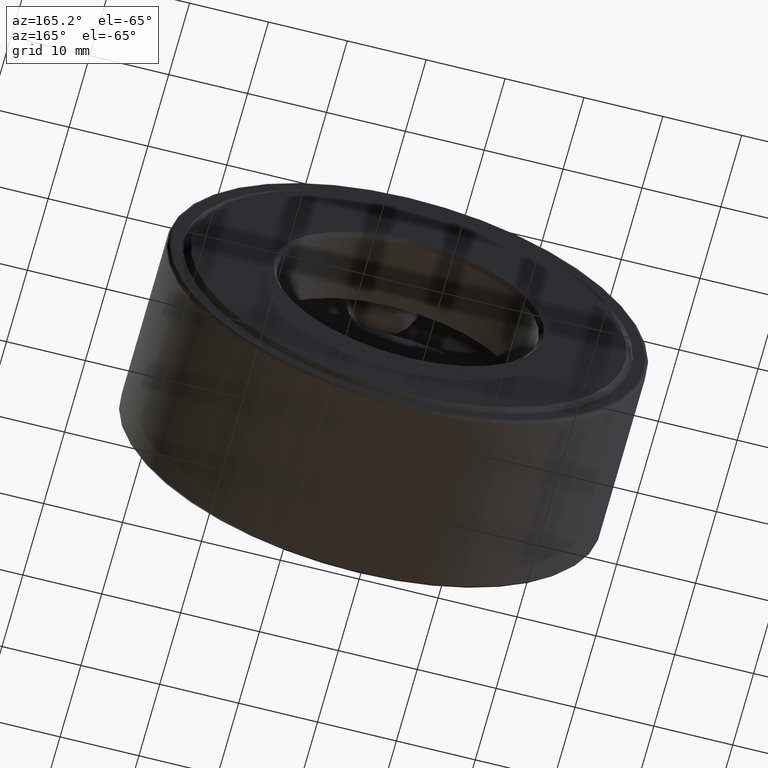
[diagram: clean part render]
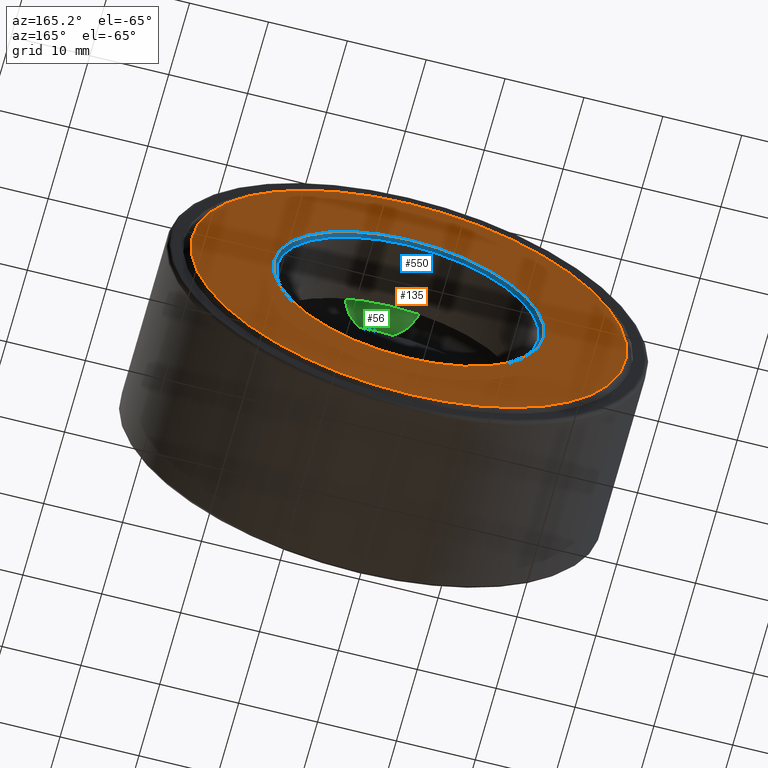
[diagram: same view with three faces highlighted in distinct colors, each labeled with its STEP entity id]
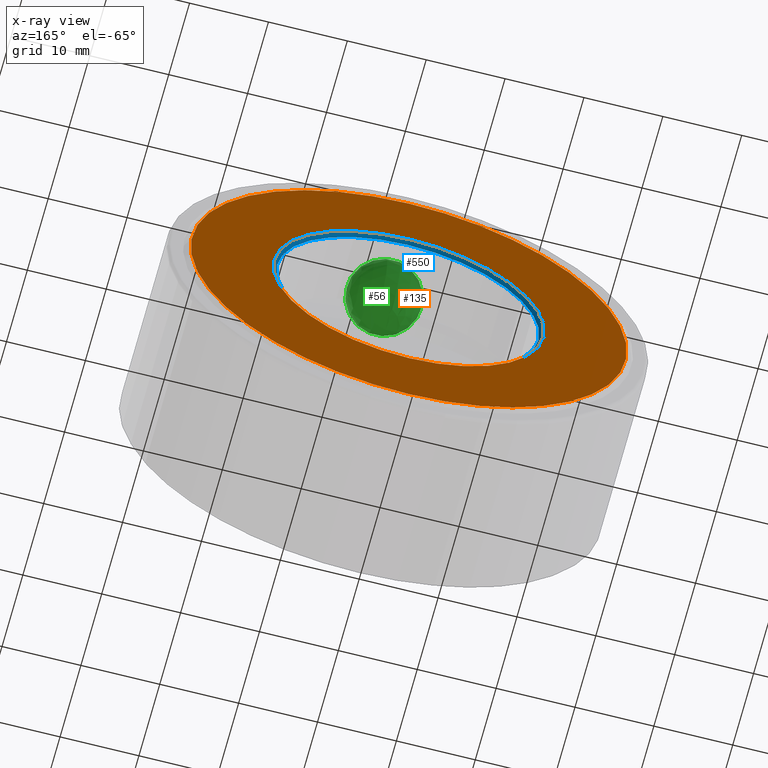
[diagram: x-ray of the same camera — body ghosted, the three highlighted faces saturated]
A machine part, auxiliary view with three faces highlighted in distinct colors.
The next image is the same camera in x-ray (body ghosted, the three faces saturated) — at least one of them is partly hidden behind the body in this view.
Their STEP definitions:

[orange] entity #135 — the highlighted planar face has unit normal (-0, 1, 0).
#43 = FACE_BOUND ( 'NONE', #217, .T. ) ;
#46 = EDGE_CURVE ( 'NONE', #391, #391, #401, .T. ) ;
#62 = DIRECTION ( 'NONE',  ( 0.0000000000000000000, 0.0000000000000000000, 1.000000000000000000 ) ) ;
#63 = DIRECTION ( 'NONE',  ( -0.0000000000000000000, 1.000000000000000000, -0.0000000000000000000 ) ) ;
#70 = DIRECTION ( 'NONE',  ( 0.0000000000000000000, 0.0000000000000000000, 1.000000000000000000 ) ) ;
#124 = DIRECTION ( 'NONE',  ( 0.0000000000000000000, 0.0000000000000000000, 1.000000000000000000 ) ) ;
#132 = CIRCLE ( 'NONE', #358, 0.6762500000000003500 ) ;
#135 = ADVANCED_FACE ( 'NONE', ( #301, #43 ), #589, .T. ) ;
#217 = EDGE_LOOP ( 'NONE', ( #579 ) ) ;
#225 = DIRECTION ( 'NONE',  ( -0.0000000000000000000, 1.000000000000000000, 0.0000000000000000000 ) ) ;
#270 = EDGE_CURVE ( 'NONE', #598, #598, #132, .T. ) ;
#301 = FACE_OUTER_BOUND ( 'NONE', #372, .T. ) ;
#304 = CARTESIAN_POINT ( 'NONE',  ( 0.0000000000000000000, 0.9375000000000000000, 0.0000000000000000000 ) ) ;
#329 = ORIENTED_EDGE ( 'NONE', *, *, #46, .T. ) ;
#358 = AXIS2_PLACEMENT_3D ( 'NONE', #425, #63, #62 ) ;
#372 = EDGE_LOOP ( 'NONE', ( #329 ) ) ;
#391 = VERTEX_POINT ( 'NONE', #600 ) ;
#401 = CIRCLE ( 'NONE', #449, 1.088124999999999800 ) ;
#425 = CARTESIAN_POINT ( 'NONE',  ( 0.0000000000000000000, 0.9375000000000000000, 0.0000000000000000000 ) ) ;
#449 = AXIS2_PLACEMENT_3D ( 'NONE', #304, #542, #70 ) ;
#500 = CARTESIAN_POINT ( 'NONE',  ( 0.0000000000000000000, 0.9375000000000000000, 0.0000000000000000000 ) ) ;
#501 = AXIS2_PLACEMENT_3D ( 'NONE', #500, #225, #124 ) ;
#542 = DIRECTION ( 'NONE',  ( -0.0000000000000000000, 1.000000000000000000, -0.0000000000000000000 ) ) ;
#568 = CARTESIAN_POINT ( 'NONE',  ( 0.0000000000000000000, 0.9375000000000000000, 0.6762500000000003500 ) ) ;
#579 = ORIENTED_EDGE ( 'NONE', *, *, #270, .F. ) ;
#589 = PLANE ( 'NONE',  #501 ) ;
#598 = VERTEX_POINT ( 'NONE', #568 ) ;
#600 = CARTESIAN_POINT ( 'NONE',  ( 0.0000000000000000000, 0.9375000000000000000, 1.088124999999999800 ) ) ;

[blue] entity #550 — the highlighted conical surface has half-angle 45 deg.
#29 = CARTESIAN_POINT ( 'NONE',  ( 0.0000000000000000000, 0.9174999999999997600, 0.0000000000000000000 ) ) ;
#47 = CARTESIAN_POINT ( 'NONE',  ( 0.0000000000000000000, 0.9174999999999997600, 0.6562500000000001100 ) ) ;
#53 = CARTESIAN_POINT ( 'NONE',  ( 0.0000000000000000000, 0.9174999999999997600, 0.0000000000000000000 ) ) ;
#62 = DIRECTION ( 'NONE',  ( 0.0000000000000000000, 0.0000000000000000000, 1.000000000000000000 ) ) ;
#63 = DIRECTION ( 'NONE',  ( -0.0000000000000000000, 1.000000000000000000, -0.0000000000000000000 ) ) ;
#65 = CIRCLE ( 'NONE', #348, 0.6562500000000001100 ) ;
#93 = DIRECTION ( 'NONE',  ( -0.0000000000000000000, 1.000000000000000000, -0.0000000000000000000 ) ) ;
#108 = EDGE_LOOP ( 'NONE', ( #560 ) ) ;
#117 = EDGE_CURVE ( 'NONE', #337, #337, #65, .T. ) ;
#132 = CIRCLE ( 'NONE', #358, 0.6762500000000003500 ) ;
#170 = FACE_BOUND ( 'NONE', #489, .T. ) ;
#181 = DIRECTION ( 'NONE',  ( 0.0000000000000000000, 0.0000000000000000000, 1.000000000000000000 ) ) ;
#190 = DIRECTION ( 'NONE',  ( 0.0000000000000000000, 0.0000000000000000000, 1.000000000000000000 ) ) ;
#221 = ORIENTED_EDGE ( 'NONE', *, *, #117, .F. ) ;
#270 = EDGE_CURVE ( 'NONE', #598, #598, #132, .T. ) ;
#290 = CONICAL_SURFACE ( 'NONE', #419, 0.6562500000000001100, 0.7853981633974449500 ) ;
#337 = VERTEX_POINT ( 'NONE', #47 ) ;
#348 = AXIS2_PLACEMENT_3D ( 'NONE', #29, #447, #181 ) ;
#358 = AXIS2_PLACEMENT_3D ( 'NONE', #425, #63, #62 ) ;
#419 = AXIS2_PLACEMENT_3D ( 'NONE', #53, #93, #190 ) ;
#425 = CARTESIAN_POINT ( 'NONE',  ( 0.0000000000000000000, 0.9375000000000000000, 0.0000000000000000000 ) ) ;
#447 = DIRECTION ( 'NONE',  ( -0.0000000000000000000, 1.000000000000000000, -0.0000000000000000000 ) ) ;
#488 = FACE_OUTER_BOUND ( 'NONE', #108, .T. ) ;
#489 = EDGE_LOOP ( 'NONE', ( #221 ) ) ;
#550 = ADVANCED_FACE ( 'NONE', ( #488, #170 ), #290, .F. ) ;
#560 = ORIENTED_EDGE ( 'NONE', *, *, #270, .T. ) ;
#568 = CARTESIAN_POINT ( 'NONE',  ( 0.0000000000000000000, 0.9375000000000000000, 0.6762500000000003500 ) ) ;
#598 = VERTEX_POINT ( 'NONE', #568 ) ;

[green] entity #56 — the highlighted spherical surface has radius 4.7625 mm.
#18 = SPHERICAL_SURFACE ( 'NONE', #592, 0.1874999999999999400 ) ;
#56 = ADVANCED_FACE ( 'NONE', ( ), #18, .T. ) ;
#68 = CARTESIAN_POINT ( 'NONE',  ( 3.444782775936106400E-015, 0.4687499999999998900, 0.9866249999999999700 ) ) ;
#218 = DIRECTION ( 'NONE',  ( -1.000000000000000000, 0.0000000000000000000, 3.491481338843131800E-015 ) ) ;
#537 = DIRECTION ( 'NONE',  ( -3.491481338843131800E-015, 0.0000000000000000000, -1.000000000000000000 ) ) ;
#592 = AXIS2_PLACEMENT_3D ( 'NONE', #68, #218, #537 ) ;